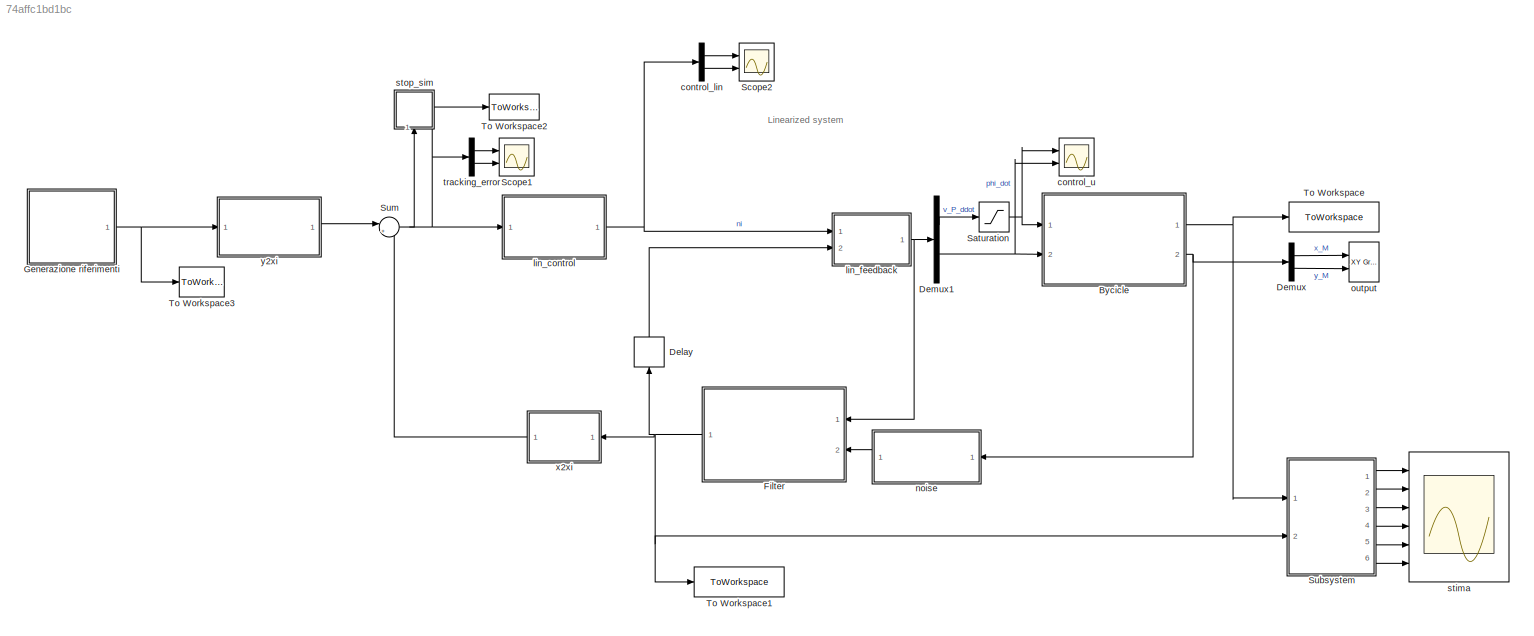
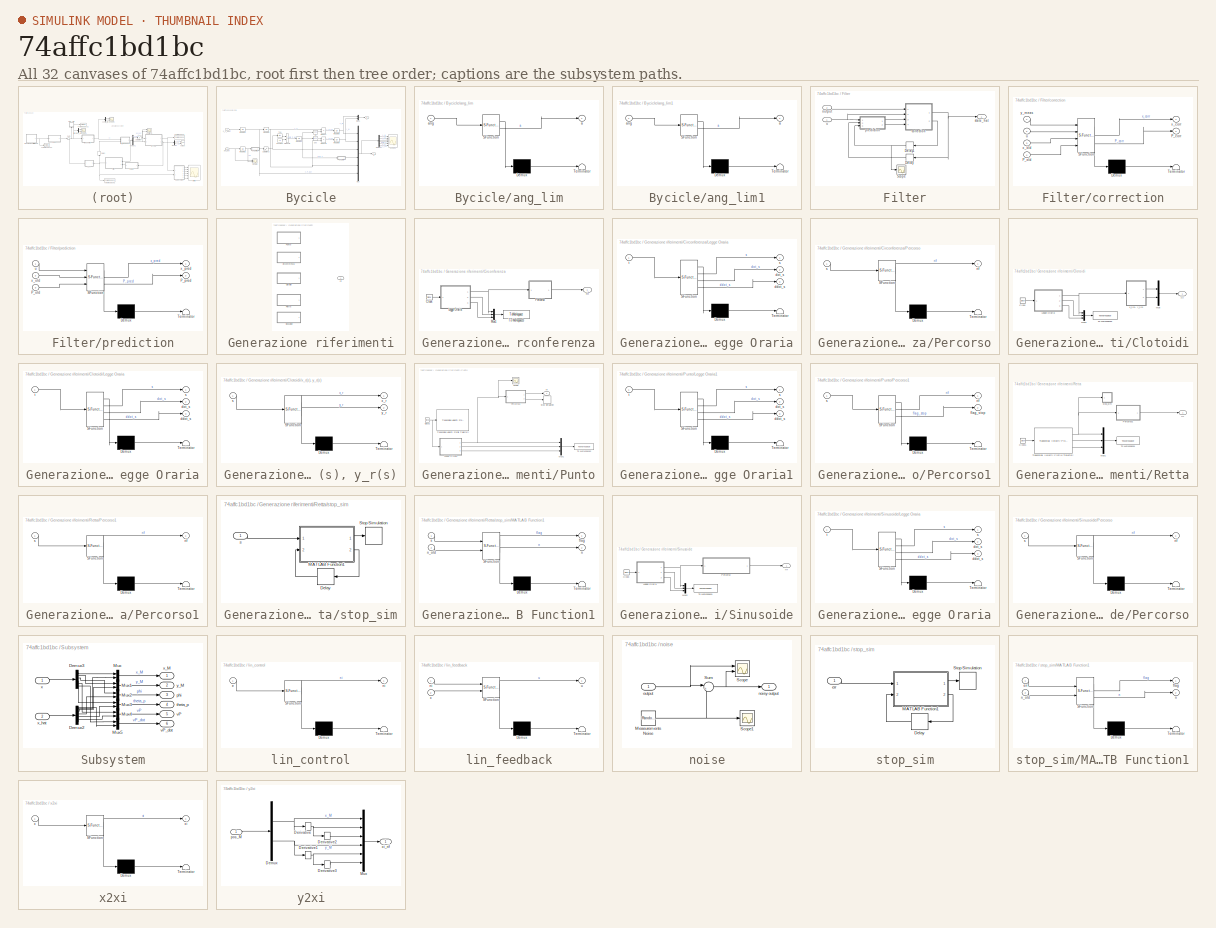
[diagram: thumbnail index - all 32 canvases of the model, root first then tree order]
MODEL slx_74affc1bd1bc
KIND model
CONFIG AbsTol = auto
CONFIG EnableMultiTasking = off
CONFIG FixedStep = Ts
CONFIG InitFcn = init_bycicle
CONFIG MaxStep = 0.01
CONFIG MinStep = auto
CONFIG RelTol = 1e-3
CONFIG SampleTimeConstraint = Unconstrained
CONFIG Solver = ode1
CONFIG SolverName = ode1
CONFIG StartTime = 0.0
CONFIG StopFcn = stop_bycicle
CONFIG StopTime = Inf
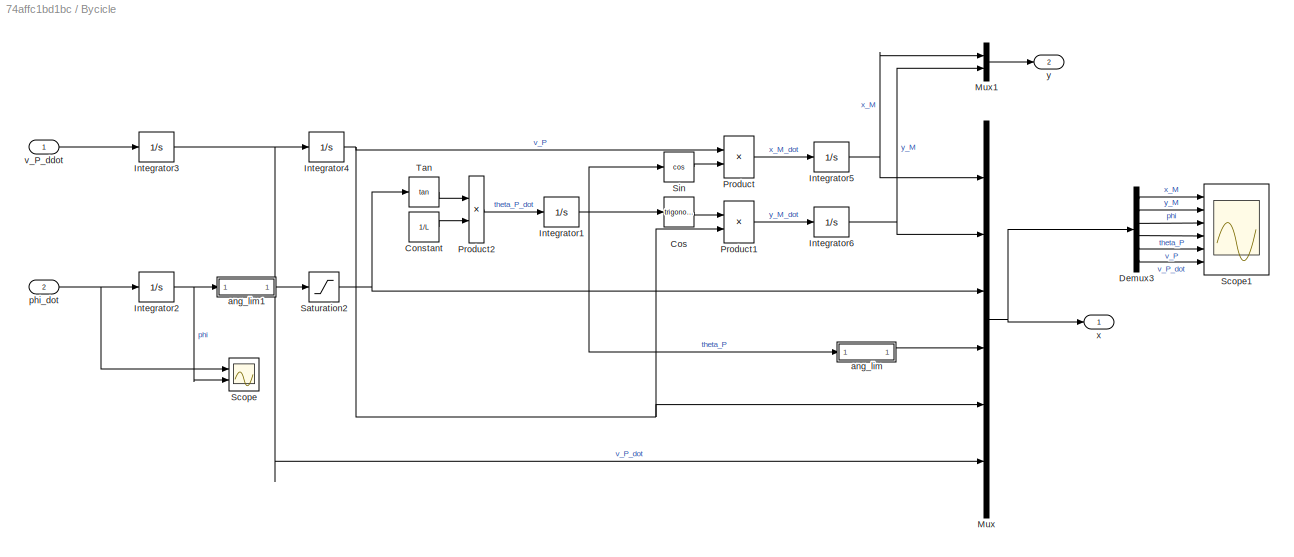
BLOCK [SubSystem] Bycicle
  Ports = [2, 2]
  RequestExecContextInheritance = off
BLOCK [Constant] Bycicle/Constant
  Value = 1/L
BLOCK [Trigonometry] Bycicle/Cos
  Ports = [1, 1]
BLOCK [Demux] Bycicle/Demux3
  Outputs = 6
  Ports = [1, 6]
BLOCK [Integrator] Bycicle/Integrator1
  InitialCondition = theta_P_iniziale
  NameLocation = top
  Ports = [1, 1]
BLOCK [Integrator] Bycicle/Integrator2
  InitialCondition = phi_iniziale
  LimitOutput = on
  LowerSaturationLimit = -pi/2
  NameLocation = top
  Ports = [1, 1]
  UpperSaturationLimit = pi/2
BLOCK [Integrator] Bycicle/Integrator3
  InitialCondition = v_P_dot_iniziale
  NameLocation = top
  Ports = [1, 1]
BLOCK [Integrator] Bycicle/Integrator4
  InitialCondition = v_P_iniziale
  NameLocation = top
  Ports = [1, 1]
BLOCK [Integrator] Bycicle/Integrator5
  InitialCondition = x_M_iniziale
  NameLocation = top
  Ports = [1, 1]
BLOCK [Integrator] Bycicle/Integrator6
  InitialCondition = y_M_iniziale
  NameLocation = top
  Ports = [1, 1]
BLOCK [Mux] Bycicle/Mux
  DisplayOption = bar
  Inputs = 6
  Ports = [6, 1]
BLOCK [Mux] Bycicle/Mux1
  DisplayOption = bar
  Inputs = 2
  Ports = [2, 1]
BLOCK [Product] Bycicle/Product
  Ports = [2, 1]
BLOCK [Product] Bycicle/Product1
  Ports = [2, 1]
BLOCK [Product] Bycicle/Product2
  Ports = [2, 1]
BLOCK [Saturate] Bycicle/Saturation2
  Commented = through
  LowerLimit = -pi/2*0.999
  UpperLimit = pi/2*0.999
BLOCK [Scope] Bycicle/Scope
  Floating = off
  NumInputPorts = 2
  Ports = [2]
  ScopeSpecificationString = Simulink.scopes.TimeScopeBlockCfg('CurrentConfiguration', extmgr.ConfigurationSet(extmgr.Configuration('Core','General UI',true),extmgr.Configuration('Core','Source UI',true),extmgr.Configuration('Sources','WiredSimulink',true,'DataLoggingVariableName','ScopeData1'),extmgr.Configuration('Visuals','Time Domain',true,'SerializedDisplays',{struct('MinYLimReal','-21546331958624542469165900490518237536...<+2174ch>
BLOCK [Scope] Bycicle/Scope1
  Floating = off
  NumInputPorts = 6
  Ports = [6]
  ScopeSpecificationString = Simulink.scopes.TimeScopeBlockCfg('CurrentConfiguration', extmgr.ConfigurationSet(extmgr.Configuration('Core','General UI',true),extmgr.Configuration('Core','Source UI',true),extmgr.Configuration('Sources','WiredSimulink',true,'DataLoggingVariableName','ScopeData1'),extmgr.Configuration('Visuals','Time Domain',true,'SerializedDisplays',{struct('MinYLimReal','-42907753996990078666280687650978377632...<+3170ch>
BLOCK [Trigonometry] Bycicle/Sin
  Operator = cos
  Ports = [1, 1]
BLOCK [Trigonometry] Bycicle/Tan
  Operator = tan
  Ports = [1, 1]
BLOCK [SubSystem] Bycicle/ang_lim
  ErrorFcn = Stateflow.Translate.translate
  NameLocation = top
  PermitHierarchicalResolution = ExplicitOnly
  Ports = [1, 1]
  RequestExecContextInheritance = off
  SFBlockType = MATLAB Function
  TreatAsAtomicUnit = on
BLOCK [Demux] Bycicle/ang_lim/ Demux 
  Outputs = 1
  Ports = [1, 1]
BLOCK [S-Function] Bycicle/ang_lim/ SFunction 
  EnableBusSupport = on
  FunctionName = sf_sfun
  PortCounts = [1 2]
  Ports = [1, 2]
  SFcnIsStateOwnerBlock = off
  SFunctionDeploymentMode = off
  Tag = Stateflow S-Function 4
BLOCK [Terminator] Bycicle/ang_lim/ Terminator 
BLOCK [Outport] Bycicle/ang_lim/a
BLOCK [Inport] Bycicle/ang_lim/ang
BLOCK [SubSystem] Bycicle/ang_lim1
  Commented = through
  ErrorFcn = Stateflow.Translate.translate
  NameLocation = top
  PermitHierarchicalResolution = ExplicitOnly
  Ports = [1, 1]
  RequestExecContextInheritance = off
  SFBlockType = MATLAB Function
  TreatAsAtomicUnit = on
BLOCK [Demux] Bycicle/ang_lim1/ Demux 
  Outputs = 1
  Ports = [1, 1]
BLOCK [S-Function] Bycicle/ang_lim1/ SFunction 
  EnableBusSupport = on
  FunctionName = sf_sfun
  PortCounts = [1 2]
  Ports = [1, 2]
  SFcnIsStateOwnerBlock = off
  SFunctionDeploymentMode = off
  Tag = Stateflow S-Function 8
BLOCK [Terminator] Bycicle/ang_lim1/ Terminator 
BLOCK [Outport] Bycicle/ang_lim1/a
BLOCK [Inport] Bycicle/ang_lim1/ang
BLOCK [Inport] Bycicle/phi_dot
  Port = 2
BLOCK [Inport] Bycicle/v_P_ddot
BLOCK [Outport] Bycicle/x
BLOCK [Outport] Bycicle/y
  Port = 2
BLOCK [Delay] Delay
  DelayLength = 1
  InitialCondition = x0
  InputPortMap = u0
  NameLocation = left
  Ports = [1, 1]
  SampleTime = Ts_filter
BLOCK [Demux] Demux
  Outputs = 2
  Ports = [1, 2]
BLOCK [Demux] Demux1
  Outputs = 2
  Ports = [1, 2]
BLOCK [SubSystem] Filter
  Ports = [2, 1]
  RequestExecContextInheritance = off
BLOCK [Delay] Filter/Delay
  DelayLength = 1
  InitialCondition = x0
  InputPortMap = u0
  NameLocation = top
  Ports = [1, 1]
  SampleTime = Ts_filter
BLOCK [Delay] Filter/Delay1
  DelayLength = 1
  InitialCondition = P0
  InputPortMap = u0
  NameLocation = top
  Ports = [1, 1]
  SampleTime = Ts_filter
BLOCK [Scope] Filter/Scope
  Floating = off
  NumInputPorts = 1
  Ports = [1]
  ScopeSpecificationString = Simulink.scopes.TimeScopeBlockCfg('CurrentConfiguration', extmgr.ConfigurationSet(extmgr.Configuration('Core','General UI',true),extmgr.Configuration('Core','Source UI',true),extmgr.Configuration('Sources','WiredSimulink',true,'DataLoggingVariableName','ScopeData2'),extmgr.Configuration('Visuals','Time Domain',true,'SerializedDisplays',{struct('MinYLimReal','-0.00000001','MaxYLimReal','0.00000013'...<+1900ch>
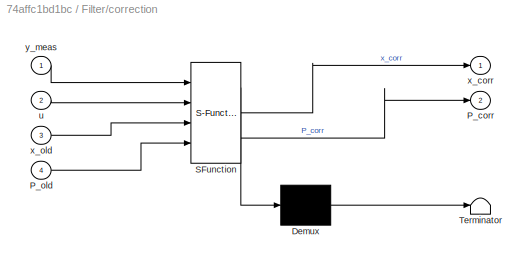
BLOCK [SubSystem] Filter/correction
  ErrorFcn = Stateflow.Translate.translate
  PermitHierarchicalResolution = ExplicitOnly
  Ports = [4, 2]
  RequestExecContextInheritance = off
  SFBlockType = MATLAB Function
  TreatAsAtomicUnit = on
BLOCK [Demux] Filter/correction/ Demux 
  Outputs = 1
  Ports = [1, 1]
BLOCK [S-Function] Filter/correction/ SFunction 
  EnableBusSupport = on
  FunctionName = sf_sfun
  Parameters = R
  PortCounts = [4 3]
  Ports = [4, 3]
  SFcnIsStateOwnerBlock = off
  SFunctionDeploymentMode = off
  Tag = Stateflow S-Function 12
BLOCK [Terminator] Filter/correction/ Terminator 
BLOCK [Outport] Filter/correction/P_corr
  Port = 2
BLOCK [Inport] Filter/correction/P_old
  Port = 4
BLOCK [Inport] Filter/correction/u
  Port = 2
BLOCK [Outport] Filter/correction/x_corr
BLOCK [Inport] Filter/correction/x_old
  Port = 3
BLOCK [Inport] Filter/correction/y_meas
BLOCK [Inport] Filter/output
  Port = 2
BLOCK [SubSystem] Filter/prediction
  ErrorFcn = Stateflow.Translate.translate
  PermitHierarchicalResolution = ExplicitOnly
  Ports = [3, 2]
  RequestExecContextInheritance = off
  SFBlockType = MATLAB Function
  TreatAsAtomicUnit = on
BLOCK [Demux] Filter/prediction/ Demux 
  Outputs = 1
  Ports = [1, 1]
BLOCK [S-Function] Filter/prediction/ SFunction 
  EnableBusSupport = on
  FunctionName = sf_sfun
  Parameters = L,Ts_filter
  PortCounts = [3 3]
  Ports = [3, 3]
  SFcnIsStateOwnerBlock = off
  SFunctionDeploymentMode = off
  Tag = Stateflow S-Function 11
BLOCK [Terminator] Filter/prediction/ Terminator 
BLOCK [Inport] Filter/prediction/P_old
  Port = 3
BLOCK [Outport] Filter/prediction/P_pred
  Port = 2
BLOCK [Inport] Filter/prediction/u
BLOCK [Inport] Filter/prediction/x_old
  Port = 2
BLOCK [Outport] Filter/prediction/x_pred
BLOCK [Outport] Filter/state_hat
BLOCK [Inport] Filter/u
BLOCK [SubSystem] Generazione riferimenti
  Ports = [0, 1]
  RequestExecContextInheritance = off
  Variant = on
BLOCK [SubSystem] Generazione riferimenti/Circonferenza
  Ports = [0, 1]
  RequestExecContextInheritance = off
  VariantControl = Circonferenza
BLOCK [Clock] Generazione riferimenti/Circonferenza/Clock
BLOCK [SubSystem] Generazione riferimenti/Circonferenza/Legge Oraria
  ErrorFcn = Stateflow.Translate.translate
  PermitHierarchicalResolution = ExplicitOnly
  Ports = [1, 3]
  RequestExecContextInheritance = off
  SFBlockType = MATLAB Function
  TreatAsAtomicUnit = on
BLOCK [Demux] Generazione riferimenti/Circonferenza/Legge Oraria/ Demux 
  Outputs = 1
  Ports = [1, 1]
BLOCK [S-Function] Generazione riferimenti/Circonferenza/Legge Oraria/ SFunction 
  EnableBusSupport = on
  FunctionName = sf_sfun
  Parameters = v_rif
  PortCounts = [1 4]
  Ports = [1, 4]
  SFcnIsStateOwnerBlock = off
  SFunctionDeploymentMode = off
  Tag = Stateflow S-Function 9
BLOCK [Terminator] Generazione riferimenti/Circonferenza/Legge Oraria/ Terminator 
BLOCK [Outport] Generazione riferimenti/Circonferenza/Legge Oraria/ddot_s
  Port = 3
BLOCK [Outport] Generazione riferimenti/Circonferenza/Legge Oraria/dot_s
  Port = 2
BLOCK [Outport] Generazione riferimenti/Circonferenza/Legge Oraria/s
BLOCK [Inport] Generazione riferimenti/Circonferenza/Legge Oraria/t
BLOCK [Mux] Generazione riferimenti/Circonferenza/Mux1
  DisplayOption = bar
  Inputs = 3
  Ports = [3, 1]
BLOCK [SubSystem] Generazione riferimenti/Circonferenza/Percorso
  ErrorFcn = Stateflow.Translate.translate
  PermitHierarchicalResolution = ExplicitOnly
  Ports = [1, 1]
  RequestExecContextInheritance = off
  SFBlockType = MATLAB Function
  TreatAsAtomicUnit = on
BLOCK [Demux] Generazione riferimenti/Circonferenza/Percorso/ Demux 
  Outputs = 1
  Ports = [1, 1]
BLOCK [S-Function] Generazione riferimenti/Circonferenza/Percorso/ SFunction 
  EnableBusSupport = on
  FunctionName = sf_sfun
  Parameters = centro,v_r
  PortCounts = [1 2]
  Ports = [1, 2]
  SFcnIsStateOwnerBlock = off
  SFunctionDeploymentMode = off
  Tag = Stateflow S-Function 10
BLOCK [Terminator] Generazione riferimenti/Circonferenza/Percorso/ Terminator 
BLOCK [Outport] Generazione riferimenti/Circonferenza/Percorso/rif
BLOCK [Inport] Generazione riferimenti/Circonferenza/Percorso/s
BLOCK [ToWorkspace] Generazione riferimenti/Circonferenza/To Workspace3
  FixptAsFi = on
  MaxDataPoints = inf
  Ports = [1]
  SampleTime = -1
  SaveFormat = Timeseries
  VariableName = curv_coord
BLOCK [Outport] Generazione riferimenti/Circonferenza/rif
BLOCK [SubSystem] Generazione riferimenti/Clotoidi
  Ports = [0, 1]
  RequestExecContextInheritance = off
  VariantControl = Clotoidi
BLOCK [Clock] Generazione riferimenti/Clotoidi/Clock
BLOCK [SubSystem] Generazione riferimenti/Clotoidi/Legge Oraria
  ErrorFcn = Stateflow.Translate.translate
  PermitHierarchicalResolution = ExplicitOnly
  Ports = [1, 3]
  RequestExecContextInheritance = off
  SFBlockType = MATLAB Function
  TreatAsAtomicUnit = on
BLOCK [Demux] Generazione riferimenti/Clotoidi/Legge Oraria/ Demux 
  Outputs = 1
  Ports = [1, 1]
BLOCK [S-Function] Generazione riferimenti/Clotoidi/Legge Oraria/ SFunction 
  EnableBusSupport = on
  FunctionName = sf_sfun
  Parameters = v_rif
  PortCounts = [1 4]
  Ports = [1, 4]
  SFcnIsStateOwnerBlock = off
  SFunctionDeploymentMode = off
  Tag = Stateflow S-Function 7
BLOCK [Terminator] Generazione riferimenti/Clotoidi/Legge Oraria/ Terminator 
BLOCK [Outport] Generazione riferimenti/Clotoidi/Legge Oraria/ddot_s
  Port = 3
BLOCK [Outport] Generazione riferimenti/Clotoidi/Legge Oraria/dot_s
  Port = 2
BLOCK [Outport] Generazione riferimenti/Clotoidi/Legge Oraria/s
BLOCK [Inport] Generazione riferimenti/Clotoidi/Legge Oraria/t
BLOCK [Mux] Generazione riferimenti/Clotoidi/Mux
  DisplayOption = bar
  Inputs = 2
  Ports = [2, 1]
BLOCK [Mux] Generazione riferimenti/Clotoidi/Mux1
  DisplayOption = bar
  Inputs = 3
  Ports = [3, 1]
BLOCK [ToWorkspace] Generazione riferimenti/Clotoidi/To Workspace3
  FixptAsFi = on
  MaxDataPoints = inf
  Ports = [1]
  SampleTime = -1
  SaveFormat = Timeseries
  VariableName = curv_coord
BLOCK [Outport] Generazione riferimenti/Clotoidi/rif
BLOCK [SubSystem] Generazione riferimenti/Clotoidi/x_r(s), y_r(s)
  ErrorFcn = Stateflow.Translate.translate
  PermitHierarchicalResolution = ExplicitOnly
  Ports = [1, 2]
  RequestExecContextInheritance = off
  SFBlockType = MATLAB Function
  TreatAsAtomicUnit = on
BLOCK [Demux] Generazione riferimenti/Clotoidi/x_r(s), y_r(s)/ Demux 
  Outputs = 1
  Ports = [1, 1]
BLOCK [S-Function] Generazione riferimenti/Clotoidi/x_r(s), y_r(s)/ SFunction 
  EnableBusSupport = on
  FunctionName = sf_sfun
  Parameters = Lsofar,Lsofarclot,Ltot,indexclot,n_p,theta_rette,xp,yp
  PortCounts = [1 3]
  Ports = [1, 3]
  SFcnIsStateOwnerBlock = off
  SFunctionDeploymentMode = off
  Tag = Stateflow S-Function 13
BLOCK [Terminator] Generazione riferimenti/Clotoidi/x_r(s), y_r(s)/ Terminator 
BLOCK [Inport] Generazione riferimenti/Clotoidi/x_r(s), y_r(s)/s
BLOCK [Outport] Generazione riferimenti/Clotoidi/x_r(s), y_r(s)/x_r
  VectorParamsAs1DForOutWhenUnconnected = off
BLOCK [Outport] Generazione riferimenti/Clotoidi/x_r(s), y_r(s)/y_r
  Port = 2
  VectorParamsAs1DForOutWhenUnconnected = off
BLOCK [SubSystem] Generazione riferimenti/Punto
  Ports = [0, 1]
  RequestExecContextInheritance = off
  VariantControl = Punto
BLOCK [Clock] Generazione riferimenti/Punto/Clock2
BLOCK [SubSystem] Generazione riferimenti/Punto/Legge Oraria1
  ErrorFcn = Stateflow.Translate.translate
  PermitHierarchicalResolution = ExplicitOnly
  Ports = [1, 3]
  RequestExecContextInheritance = off
  SFBlockType = MATLAB Function
  TreatAsAtomicUnit = on
BLOCK [Demux] Generazione riferimenti/Punto/Legge Oraria1/ Demux 
  Outputs = 1
  Ports = [1, 1]
BLOCK [S-Function] Generazione riferimenti/Punto/Legge Oraria1/ SFunction 
  EnableBusSupport = on
  FunctionName = sf_sfun
  Parameters = v_rif
  PortCounts = [1 4]
  Ports = [1, 4]
  SFcnIsStateOwnerBlock = off
  SFunctionDeploymentMode = off
  Tag = Stateflow S-Function 16
BLOCK [Terminator] Generazione riferimenti/Punto/Legge Oraria1/ Terminator 
BLOCK [Outport] Generazione riferimenti/Punto/Legge Oraria1/ddot_s
  Port = 3
BLOCK [Outport] Generazione riferimenti/Punto/Legge Oraria1/dot_s
  Port = 2
BLOCK [Outport] Generazione riferimenti/Punto/Legge Oraria1/s
BLOCK [Inport] Generazione riferimenti/Punto/Legge Oraria1/t
BLOCK [Mux] Generazione riferimenti/Punto/Mux1
  DisplayOption = bar
  Inputs = 3
  Ports = [3, 1]
BLOCK [SubSystem] Generazione riferimenti/Punto/Percorso1
  ErrorFcn = Stateflow.Translate.translate
  PermitHierarchicalResolution = ExplicitOnly
  Ports = [1, 2]
  RequestExecContextInheritance = off
  SFBlockType = MATLAB Function
  TreatAsAtomicUnit = on
BLOCK [Demux] Generazione riferimenti/Punto/Percorso1/ Demux 
  Outputs = 1
  Ports = [1, 1]
BLOCK [S-Function] Generazione riferimenti/Punto/Percorso1/ SFunction 
  EnableBusSupport = on
  FunctionName = sf_sfun
  Parameters = dir_retta,s_finale,x_M_iniziale,y_M_iniziale
  PortCounts = [1 3]
  Ports = [1, 3]
  SFcnIsStateOwnerBlock = off
  SFunctionDeploymentMode = off
  Tag = Stateflow S-Function 28
BLOCK [Terminator] Generazione riferimenti/Punto/Percorso1/ Terminator 
BLOCK [Outport] Generazione riferimenti/Punto/Percorso1/flag_stop
  Port = 2
BLOCK [Outport] Generazione riferimenti/Punto/Percorso1/rif
BLOCK [Inport] Generazione riferimenti/Punto/Percorso1/s
BLOCK [Scope] Generazione riferimenti/Punto/Scope
  Floating = off
  NumInputPorts = 1
  Ports = [1]
  ScopeSpecificationString = Simulink.scopes.TimeScopeBlockCfg('CurrentConfiguration', extmgr.ConfigurationSet(extmgr.Configuration('Core','General UI',true),extmgr.Configuration('Core','Source UI',true),extmgr.Configuration('Sources','WiredSimulink',true,'DataLoggingVariableName','ScopeData1'),extmgr.Configuration('Visuals','Time Domain',true,'SerializedDisplays',{struct('MinYLimReal','-8.54167','MaxYLimReal','76.875','YLabe...<+1544ch>
BLOCK [Stop] Generazione riferimenti/Punto/Stop Simulation
BLOCK [ToWorkspace] Generazione riferimenti/Punto/To Workspace2
  FixptAsFi = on
  MaxDataPoints = inf
  Ports = [1]
  SampleTime = -1
  SaveFormat = Timeseries
  VariableName = curv_coord
BLOCK [Reference] Generazione riferimenti/Punto/Trapezoidal Velocity Profile Trajectory  REF=robotcorelib/Trapezoidal Velocity Profile Trajectory
  Commented = on
  Ports = [1, 3]
  SourceBlock = robotcorelib/Trapezoidal Velocity Profile Trajectory
  SourceProductBaseCode = NV,RO,RR
  SourceType = robotics.slcore.internal.block.TrapVelTrajSys
BLOCK [Outport] Generazione riferimenti/Punto/rif
BLOCK [SubSystem] Generazione riferimenti/Retta
  Ports = [0, 1]
  RequestExecContextInheritance = off
  VariantControl = Retta
BLOCK [Clock] Generazione riferimenti/Retta/Clock1
BLOCK [Mux] Generazione riferimenti/Retta/Mux1
  DisplayOption = bar
  Inputs = 3
  Ports = [3, 1]
BLOCK [SubSystem] Generazione riferimenti/Retta/Percorso1
  ErrorFcn = Stateflow.Translate.translate
  PermitHierarchicalResolution = ExplicitOnly
  Ports = [1, 1]
  RequestExecContextInheritance = off
  SFBlockType = MATLAB Function
  TreatAsAtomicUnit = on
BLOCK [Demux] Generazione riferimenti/Retta/Percorso1/ Demux 
  Outputs = 1
  Ports = [1, 1]
BLOCK [S-Function] Generazione riferimenti/Retta/Percorso1/ SFunction 
  EnableBusSupport = on
  FunctionName = sf_sfun
  Parameters = dir_retta
  PortCounts = [1 2]
  Ports = [1, 2]
  SFcnIsStateOwnerBlock = off
  SFunctionDeploymentMode = off
  Tag = Stateflow S-Function 3
BLOCK [Terminator] Generazione riferimenti/Retta/Percorso1/ Terminator 
BLOCK [Outport] Generazione riferimenti/Retta/Percorso1/rif
BLOCK [Inport] Generazione riferimenti/Retta/Percorso1/s
BLOCK [ToWorkspace] Generazione riferimenti/Retta/To Workspace1
  FixptAsFi = on
  MaxDataPoints = inf
  Ports = [1]
  SampleTime = -1
  SaveFormat = Timeseries
  VariableName = curv_coord
BLOCK [Reference] Generazione riferimenti/Retta/Trapezoidal Velocity Profile Trajectory  REF=robotcorelib/Trapezoidal Velocity Profile Trajectory
  Ports = [1, 3]
  SourceBlock = robotcorelib/Trapezoidal Velocity Profile Trajectory
  SourceProductBaseCode = NV,RO,RR
  SourceType = robotics.slcore.internal.block.TrapVelTrajSys
BLOCK [Outport] Generazione riferimenti/Retta/rif
BLOCK [SubSystem] Generazione riferimenti/Retta/stop_sim
  Ports = [1]
  RequestExecContextInheritance = off
BLOCK [Delay] Generazione riferimenti/Retta/stop_sim/Delay
  DelayLength = 1
  InputPortMap = u0
  Ports = [1, 1]
BLOCK [SubSystem] Generazione riferimenti/Retta/stop_sim/MATLAB Function1
  ErrorFcn = Stateflow.Translate.translate
  PermitHierarchicalResolution = ExplicitOnly
  Ports = [2, 2]
  RequestExecContextInheritance = off
  SFBlockType = MATLAB Function
  TreatAsAtomicUnit = on
BLOCK [Demux] Generazione riferimenti/Retta/stop_sim/MATLAB Function1/ Demux 
  Outputs = 1
  Ports = [1, 1]
BLOCK [S-Function] Generazione riferimenti/Retta/stop_sim/MATLAB Function1/ SFunction 
  EnableBusSupport = on
  FunctionName = sf_sfun
  Parameters = s_finale,threshold
  PortCounts = [2 3]
  Ports = [2, 3]
  SFcnIsStateOwnerBlock = off
  SFunctionDeploymentMode = off
  Tag = Stateflow S-Function 6
BLOCK [Terminator] Generazione riferimenti/Retta/stop_sim/MATLAB Function1/ Terminator 
BLOCK [Outport] Generazione riferimenti/Retta/stop_sim/MATLAB Function1/flag
BLOCK [Outport] Generazione riferimenti/Retta/stop_sim/MATLAB Function1/n
  Port = 2
BLOCK [Inport] Generazione riferimenti/Retta/stop_sim/MATLAB Function1/n_old
  Port = 2
BLOCK [Inport] Generazione riferimenti/Retta/stop_sim/MATLAB Function1/s
BLOCK [Stop] Generazione riferimenti/Retta/stop_sim/Stop Simulation
BLOCK [Inport] Generazione riferimenti/Retta/stop_sim/s
BLOCK [SubSystem] Generazione riferimenti/Sinusoide
  Ports = [0, 1]
  RequestExecContextInheritance = off
  VariantControl = Sinusoide
BLOCK [Clock] Generazione riferimenti/Sinusoide/Clock
BLOCK [SubSystem] Generazione riferimenti/Sinusoide/Legge Oraria
  ErrorFcn = Stateflow.Translate.translate
  PermitHierarchicalResolution = ExplicitOnly
  Ports = [1, 3]
  RequestExecContextInheritance = off
  SFBlockType = MATLAB Function
  TreatAsAtomicUnit = on
BLOCK [Demux] Generazione riferimenti/Sinusoide/Legge Oraria/ Demux 
  Outputs = 1
  Ports = [1, 1]
BLOCK [S-Function] Generazione riferimenti/Sinusoide/Legge Oraria/ SFunction 
  EnableBusSupport = on
  FunctionName = sf_sfun
  Parameters = v_rif
  PortCounts = [1 4]
  Ports = [1, 4]
  SFcnIsStateOwnerBlock = off
  SFunctionDeploymentMode = off
  Tag = Stateflow S-Function 14
BLOCK [Terminator] Generazione riferimenti/Sinusoide/Legge Oraria/ Terminator 
BLOCK [Outport] Generazione riferimenti/Sinusoide/Legge Oraria/ddot_s
  Port = 3
BLOCK [Outport] Generazione riferimenti/Sinusoide/Legge Oraria/dot_s
  Port = 2
BLOCK [Outport] Generazione riferimenti/Sinusoide/Legge Oraria/s
BLOCK [Inport] Generazione riferimenti/Sinusoide/Legge Oraria/t
BLOCK [Mux] Generazione riferimenti/Sinusoide/Mux2
  DisplayOption = bar
  Inputs = 3
  Ports = [3, 1]
BLOCK [SubSystem] Generazione riferimenti/Sinusoide/Percorso
  ErrorFcn = Stateflow.Translate.translate
  PermitHierarchicalResolution = ExplicitOnly
  Ports = [1, 1]
  RequestExecContextInheritance = off
  SFBlockType = MATLAB Function
  TreatAsAtomicUnit = on
BLOCK [Demux] Generazione riferimenti/Sinusoide/Percorso/ Demux 
  Outputs = 1
  Ports = [1, 1]
BLOCK [S-Function] Generazione riferimenti/Sinusoide/Percorso/ SFunction 
  EnableBusSupport = on
  FunctionName = sf_sfun
  Parameters = apertura,dir_retta
  PortCounts = [1 2]
  Ports = [1, 2]
  SFcnIsStateOwnerBlock = off
  SFunctionDeploymentMode = off
  Tag = Stateflow S-Function 15
BLOCK [Terminator] Generazione riferimenti/Sinusoide/Percorso/ Terminator 
BLOCK [Outport] Generazione riferimenti/Sinusoide/Percorso/rif
BLOCK [Inport] Generazione riferimenti/Sinusoide/Percorso/s
BLOCK [ToWorkspace] Generazione riferimenti/Sinusoide/To Workspace1
  FixptAsFi = on
  MaxDataPoints = inf
  Ports = [1]
  SampleTime = -1
  SaveFormat = Timeseries
  VariableName = curv_coord
BLOCK [Outport] Generazione riferimenti/Sinusoide/rif
BLOCK [Outport] Generazione riferimenti/rif
BLOCK [Saturate] Saturation
  LowerLimit = -inf
  UpperLimit = inf
BLOCK [Scope] Scope1
  Floating = off
  NumInputPorts = 2
  Ports = [2]
  ScopeSpecificationString = Simulink.scopes.TimeScopeBlockCfg('CurrentConfiguration', extmgr.ConfigurationSet(extmgr.Configuration('Core','General UI',true),extmgr.Configuration('Core','Source UI',true),extmgr.Configuration('Sources','WiredSimulink',true,'DataLoggingVariableName','ScopeData1'),extmgr.Configuration('Visuals','Time Domain',true,'SerializedDisplays',{struct('MinYLimReal','-0.0998','MaxYLimReal','0.07439','YLabe...<+1552ch>
BLOCK [Scope] Scope2
  Floating = off
  NumInputPorts = 2
  Ports = [2]
  ScopeSpecificationString = Simulink.scopes.TimeScopeBlockCfg('CurrentConfiguration', extmgr.ConfigurationSet(extmgr.Configuration('Core','General UI',true),extmgr.Configuration('Core','Source UI',true),extmgr.Configuration('Sources','WiredSimulink',true,'DataLoggingVariableName','ScopeData3'),extmgr.Configuration('Visuals','Time Domain',true,'SerializedDisplays',{struct('MinYLimReal','-28128942865715496458282282631640135295...<+1896ch>
BLOCK [SubSystem] Subsystem
  Ports = [2, 6]
  RequestExecContextInheritance = off
BLOCK [Demux] Subsystem/Demux2
  Outputs = 6
  Ports = [1, 6]
BLOCK [Demux] Subsystem/Demux3
  Outputs = 6
  Ports = [1, 6]
BLOCK [Mux] Subsystem/Mux
  DisplayOption = bar
  Inputs = 2
  Ports = [2, 1]
BLOCK [Mux] Subsystem/Mux1
  DisplayOption = bar
  Inputs = 2
  Ports = [2, 1]
BLOCK [Mux] Subsystem/Mux2
  DisplayOption = bar
  Inputs = 2
  Ports = [2, 1]
BLOCK [Mux] Subsystem/Mux3
  DisplayOption = bar
  Inputs = 2
  Ports = [2, 1]
BLOCK [Mux] Subsystem/Mux4
  DisplayOption = bar
  Inputs = 2
  Ports = [2, 1]
BLOCK [Mux] Subsystem/Mux5
  DisplayOption = bar
  Inputs = 2
  Ports = [2, 1]
BLOCK [Outport] Subsystem/phi
  Port = 3
BLOCK [Outport] Subsystem/theta_p
  Port = 4
BLOCK [Outport] Subsystem/vP
  Port = 5
BLOCK [Outport] Subsystem/vP_dot
  Port = 6
BLOCK [Inport] Subsystem/x
BLOCK [Outport] Subsystem/x_M
BLOCK [Inport] Subsystem/x_hat
  Port = 2
BLOCK [Outport] Subsystem/y_M
  Port = 2
BLOCK [Sum] Sum
  Inputs = |+-
  Ports = [2, 1]
BLOCK [ToWorkspace] To Workspace
  FixptAsFi = on
  MaxDataPoints = inf
  Ports = [1]
  SampleTime = -1
  SaveFormat = Timeseries
  VariableName = state_ts
BLOCK [ToWorkspace] To Workspace1
  FixptAsFi = on
  MaxDataPoints = inf
  Ports = [1]
  SampleTime = -1
  SaveFormat = Timeseries
  VariableName = state_hat
BLOCK [ToWorkspace] To Workspace2
  FixptAsFi = on
  MaxDataPoints = inf
  Ports = [1]
  SampleTime = -1
  SaveFormat = Timeseries
  VariableName = err
BLOCK [ToWorkspace] To Workspace3
  FixptAsFi = on
  MaxDataPoints = inf
  Ports = [1]
  SampleTime = -1
  SaveFormat = Timeseries
  VariableName = rif
BLOCK [Demux] control_lin
  Outputs = 2
  Ports = [1, 2]
BLOCK [Scope] control_u
  Floating = off
  NumInputPorts = 2
  Ports = [2]
  ScopeSpecificationString = Simulink.scopes.TimeScopeBlockCfg('CurrentConfiguration', extmgr.ConfigurationSet(extmgr.Configuration('Core','General UI',true),extmgr.Configuration('Core','Source UI',true),extmgr.Configuration('Sources','WiredSimulink',true,'DataLoggingVariableName','ScopeData2'),extmgr.Configuration('Visuals','Time Domain',true,'SerializedDisplays',{struct('MinYLimReal','-367131.61365','MaxYLimReal','1271267.2...<+2157ch>
BLOCK [SubSystem] lin_control
  ErrorFcn = Stateflow.Translate.translate
  PermitHierarchicalResolution = ExplicitOnly
  Ports = [1, 1]
  RequestExecContextInheritance = off
  SFBlockType = MATLAB Function
  TreatAsAtomicUnit = on
BLOCK [Demux] lin_control/ Demux 
  Outputs = 1
  Ports = [1, 1]
BLOCK [S-Function] lin_control/ SFunction 
  EnableBusSupport = on
  FunctionName = sf_sfun
  Parameters = K1,K2,K3
  PortCounts = [1 2]
  Ports = [1, 2]
  SFcnIsStateOwnerBlock = off
  SFunctionDeploymentMode = off
  Tag = Stateflow S-Function 1
BLOCK [Terminator] lin_control/ Terminator 
BLOCK [Inport] lin_control/e
BLOCK [Outport] lin_control/ni
BLOCK [SubSystem] lin_feedback
  ErrorFcn = Stateflow.Translate.translate
  PermitHierarchicalResolution = ExplicitOnly
  Ports = [2, 1]
  RequestExecContextInheritance = off
  SFBlockType = MATLAB Function
  TreatAsAtomicUnit = on
BLOCK [Demux] lin_feedback/ Demux 
  Outputs = 1
  Ports = [1, 1]
BLOCK [S-Function] lin_feedback/ SFunction 
  EnableBusSupport = on
  FunctionName = sf_sfun
  Parameters = L
  PortCounts = [2 2]
  Ports = [2, 2]
  SFcnIsStateOwnerBlock = off
  SFunctionDeploymentMode = off
  Tag = Stateflow S-Function 2
BLOCK [Terminator] lin_feedback/ Terminator 
BLOCK [Inport] lin_feedback/ni
BLOCK [Outport] lin_feedback/u
BLOCK [Inport] lin_feedback/x
  Port = 2
BLOCK [SubSystem] noise
  Ports = [1, 1]
  RequestExecContextInheritance = off
BLOCK [RandomNumber] noise/Measurements Noise
  SampleTime = Ts_meas
  Seed = [10, 13]
  Variance = var_meas
BLOCK [Scope] noise/Scope
  Floating = off
  NumInputPorts = 2
  Ports = [2]
  ScopeSpecificationString = Simulink.scopes.TimeScopeBlockCfg('CurrentConfiguration', extmgr.ConfigurationSet(extmgr.Configuration('Core','General UI',true),extmgr.Configuration('Core','Source UI',true),extmgr.Configuration('Sources','WiredSimulink',true,'DataLoggingVariableName','ScopeData2'),extmgr.Configuration('Visuals','Time Domain',true,'SerializedDisplays',{struct('MinYLimReal','22.28249','MaxYLimReal','22.29297','YLa...<+2077ch>
BLOCK [Scope] noise/Scope1
  Floating = off
  NumInputPorts = 1
  Ports = [1]
  ScopeSpecificationString = Simulink.scopes.TimeScopeBlockCfg('CurrentConfiguration', extmgr.ConfigurationSet(extmgr.Configuration('Core','General UI',true),extmgr.Configuration('Core','Source UI',true),extmgr.Configuration('Sources','WiredSimulink',true,'DataLoggingVariableName','ScopeData3'),extmgr.Configuration('Visuals','Time Domain',true,'SerializedDisplays',{struct('MinYLimReal','-0.00175','MaxYLimReal','0.00181','YLab...<+1446ch>
BLOCK [Sum] noise/Sum
  Inputs = |++
  Ports = [2, 1]
BLOCK [Outport] noise/noisy output
BLOCK [Inport] noise/output
BLOCK [Reference] output  REF=simulink/Sinks/XY Graph
  Ports = [2]
  SourceBlock = simulink/Sinks/XY Graph
  SourceProductBaseCode = SL
  SourceType = XY scope.
BLOCK [Scope] stima
  Floating = off
  NumInputPorts = 6
  Ports = [6]
  ScopeSpecificationString = Simulink.scopes.TimeScopeBlockCfg('CurrentConfiguration', extmgr.ConfigurationSet(extmgr.Configuration('Core','General UI',true),extmgr.Configuration('Core','Source UI',true),extmgr.Configuration('Sources','WiredSimulink',true,'DataLoggingVariableName','ScopeData1'),extmgr.Configuration('Visuals','Time Domain',true,'SerializedDisplays',{struct('MinYLimReal','-20.80304','MaxYLimReal','71.78957','YL...<+5132ch>
BLOCK [SubSystem] stop_sim
  Commented = on
  NameLocation = top
  Ports = [1]
  RequestExecContextInheritance = off
BLOCK [Delay] stop_sim/Delay
  DelayLength = 1
  InputPortMap = u0
  Ports = [1, 1]
BLOCK [SubSystem] stop_sim/MATLAB Function1
  ErrorFcn = Stateflow.Translate.translate
  PermitHierarchicalResolution = ExplicitOnly
  Ports = [2, 2]
  RequestExecContextInheritance = off
  SFBlockType = MATLAB Function
  TreatAsAtomicUnit = on
BLOCK [Demux] stop_sim/MATLAB Function1/ Demux 
  Outputs = 1
  Ports = [1, 1]
BLOCK [S-Function] stop_sim/MATLAB Function1/ SFunction 
  EnableBusSupport = on
  FunctionName = sf_sfun
  Parameters = threshold
  PortCounts = [2 3]
  Ports = [2, 3]
  SFcnIsStateOwnerBlock = off
  SFunctionDeploymentMode = off
  Tag = Stateflow S-Function 5
BLOCK [Terminator] stop_sim/MATLAB Function1/ Terminator 
BLOCK [Inport] stop_sim/MATLAB Function1/err
BLOCK [Outport] stop_sim/MATLAB Function1/flag
BLOCK [Outport] stop_sim/MATLAB Function1/n
  Port = 2
BLOCK [Inport] stop_sim/MATLAB Function1/n_old
  Port = 2
BLOCK [Stop] stop_sim/Stop Simulation
BLOCK [Inport] stop_sim/err
BLOCK [Demux] tracking_error
  Outputs = 2
  Ports = [1, 2]
BLOCK [SubSystem] x2xi
  ErrorFcn = Stateflow.Translate.translate
  PermitHierarchicalResolution = ExplicitOnly
  Ports = [1, 1]
  RequestExecContextInheritance = off
  SFBlockType = MATLAB Function
  TreatAsAtomicUnit = on
BLOCK [Demux] x2xi/ Demux 
  Outputs = 1
  Ports = [1, 1]
BLOCK [S-Function] x2xi/ SFunction 
  EnableBusSupport = on
  FunctionName = sf_sfun
  Parameters = L
  PortCounts = [1 2]
  Ports = [1, 2]
  SFcnIsStateOwnerBlock = off
  SFunctionDeploymentMode = off
  Tag = Stateflow S-Function 26
BLOCK [Terminator] x2xi/ Terminator 
BLOCK [Inport] x2xi/x
BLOCK [Outport] x2xi/xi
BLOCK [SubSystem] y2xi
  Ports = [1, 1]
  RequestExecContextInheritance = off
BLOCK [Demux] y2xi/Demux
  Outputs = 2
  Ports = [1, 2]
BLOCK [Derivative] y2xi/Derivative
  CoefficientInTFapproximation = 1e10
BLOCK [Derivative] y2xi/Derivative1
  CoefficientInTFapproximation = 1e10
BLOCK [Derivative] y2xi/Derivative2
  CoefficientInTFapproximation = 1e10
BLOCK [Derivative] y2xi/Derivative3
  CoefficientInTFapproximation = 1e10
BLOCK [Mux] y2xi/Mux
  DisplayOption = bar
  Inputs = 6
  Ports = [6, 1]
BLOCK [Inport] y2xi/pos_M
BLOCK [Outport] y2xi/xi_rif
ANNOTATION (root): Linearized system
LINE Bycicle/Constant:1 -> Bycicle/Product2:2
LINE Bycicle/Cos:1 -> Bycicle/Product1:1
LINE Bycicle/Demux3:1 -> Bycicle/Scope1:1
LINE Bycicle/Demux3:2 -> Bycicle/Scope1:2
LINE Bycicle/Demux3:3 -> Bycicle/Scope1:3
LINE Bycicle/Demux3:4 -> Bycicle/Scope1:4
LINE Bycicle/Demux3:5 -> Bycicle/Scope1:5
LINE Bycicle/Demux3:6 -> Bycicle/Scope1:6
NET Bycicle/Integrator1:1 -> Bycicle/Cos:1, Bycicle/Sin:1, Bycicle/ang_lim:1
NET Bycicle/Integrator2:1 -> Bycicle/Scope:2, Bycicle/ang_lim1:1
NET Bycicle/Integrator3:1 -> Bycicle/Integrator4:1, Bycicle/Mux:6
NET Bycicle/Integrator4:1 -> Bycicle/Mux:5, Bycicle/Product1:2, Bycicle/Product:1
NET Bycicle/Integrator5:1 -> Bycicle/Mux1:1, Bycicle/Mux:1
NET Bycicle/Integrator6:1 -> Bycicle/Mux1:2, Bycicle/Mux:2
LINE Bycicle/Mux1:1 -> Bycicle/y:1
NET Bycicle/Mux:1 -> Bycicle/Demux3:1, Bycicle/x:1
LINE Bycicle/Product1:1 -> Bycicle/Integrator6:1
LINE Bycicle/Product2:1 -> Bycicle/Integrator1:1
LINE Bycicle/Product:1 -> Bycicle/Integrator5:1
NET Bycicle/Saturation2:1 -> Bycicle/Mux:3, Bycicle/Tan:1
LINE Bycicle/Sin:1 -> Bycicle/Product:2
LINE Bycicle/Tan:1 -> Bycicle/Product2:1
LINE Bycicle/ang_lim1:1 -> Bycicle/Saturation2:1
LINE Bycicle/ang_lim:1 -> Bycicle/Mux:4
NET Bycicle/phi_dot:1 -> Bycicle/Integrator2:1, Bycicle/Scope:1
LINE Bycicle/v_P_ddot:1 -> Bycicle/Integrator3:1
NET Bycicle:1 -> Subsystem:1, To Workspace:1
NET Bycicle:2 -> Demux:1, noise:1
LINE Delay:1 -> lin_feedback:2
LINE Demux1:1 -> Saturation:1
NET Demux1:2 -> Bycicle:2, control_u:2
LINE Demux:1 -> output:1
LINE Demux:2 -> output:2
NET Filter/Delay1:1 -> Filter/Scope:1, Filter/prediction:3
LINE Filter/Delay:1 -> Filter/prediction:2
NET Filter/correction:1 -> Filter/Delay:1, Filter/state_hat:1
LINE Filter/correction:2 -> Filter/Delay1:1
LINE Filter/output:1 -> Filter/correction:1
LINE Filter/prediction:1 -> Filter/correction:3
LINE Filter/prediction:2 -> Filter/correction:4
NET Filter/u:1 -> Filter/correction:2, Filter/prediction:1
NET Filter:1 -> Delay:1, Subsystem:2, To Workspace1:1, x2xi:1
LINE Generazione riferimenti/Circonferenza/Clock:1 -> Generazione riferimenti/Circonferenza/Legge Oraria:1
NET Generazione riferimenti/Circonferenza/Legge Oraria:1 -> Generazione riferimenti/Circonferenza/Mux1:1, Generazione riferimenti/Circonferenza/Percorso:1
LINE Generazione riferimenti/Circonferenza/Legge Oraria:2 -> Generazione riferimenti/Circonferenza/Mux1:2
LINE Generazione riferimenti/Circonferenza/Legge Oraria:3 -> Generazione riferimenti/Circonferenza/Mux1:3
LINE Generazione riferimenti/Circonferenza/Mux1:1 -> Generazione riferimenti/Circonferenza/To Workspace3:1
LINE Generazione riferimenti/Circonferenza/Percorso:1 -> Generazione riferimenti/Circonferenza/rif:1
LINE Generazione riferimenti/Clotoidi/Clock:1 -> Generazione riferimenti/Clotoidi/Legge Oraria:1
NET Generazione riferimenti/Clotoidi/Legge Oraria:1 -> Generazione riferimenti/Clotoidi/Mux1:1, Generazione riferimenti/Clotoidi/x_r(s), y_r(s):1
LINE Generazione riferimenti/Clotoidi/Legge Oraria:2 -> Generazione riferimenti/Clotoidi/Mux1:2
LINE Generazione riferimenti/Clotoidi/Legge Oraria:3 -> Generazione riferimenti/Clotoidi/Mux1:3
LINE Generazione riferimenti/Clotoidi/Mux1:1 -> Generazione riferimenti/Clotoidi/To Workspace3:1
LINE Generazione riferimenti/Clotoidi/Mux:1 -> Generazione riferimenti/Clotoidi/rif:1
LINE Generazione riferimenti/Clotoidi/x_r(s), y_r(s):1 -> Generazione riferimenti/Clotoidi/Mux:1
LINE Generazione riferimenti/Clotoidi/x_r(s), y_r(s):2 -> Generazione riferimenti/Clotoidi/Mux:2
NET Generazione riferimenti/Punto/Clock2:1 -> Generazione riferimenti/Punto/Legge Oraria1:1, Generazione riferimenti/Punto/Trapezoidal Velocity Profile Trajectory:1
NET Generazione riferimenti/Punto/Legge Oraria1:1 -> Generazione riferimenti/Punto/Mux1:1, Generazione riferimenti/Punto/Percorso1:1, Generazione riferimenti/Punto/Scope:1
LINE Generazione riferimenti/Punto/Legge Oraria1:2 -> Generazione riferimenti/Punto/Mux1:2
LINE Generazione riferimenti/Punto/Legge Oraria1:3 -> Generazione riferimenti/Punto/Mux1:3
LINE Generazione riferimenti/Punto/Mux1:1 -> Generazione riferimenti/Punto/To Workspace2:1
LINE Generazione riferimenti/Punto/Percorso1:1 -> Generazione riferimenti/Punto/rif:1
LINE Generazione riferimenti/Punto/Percorso1:2 -> Generazione riferimenti/Punto/Stop Simulation:1
LINE Generazione riferimenti/Retta/Clock1:1 -> Generazione riferimenti/Retta/Trapezoidal Velocity Profile Trajectory:1
LINE Generazione riferimenti/Retta/Mux1:1 -> Generazione riferimenti/Retta/To Workspace1:1
LINE Generazione riferimenti/Retta/Percorso1:1 -> Generazione riferimenti/Retta/rif:1
NET Generazione riferimenti/Retta/Trapezoidal Velocity Profile Trajectory:1 -> Generazione riferimenti/Retta/Mux1:1, Generazione riferimenti/Retta/Percorso1:1, Generazione riferimenti/Retta/stop_sim:1
LINE Generazione riferimenti/Retta/Trapezoidal Velocity Profile Trajectory:2 -> Generazione riferimenti/Retta/Mux1:2
LINE Generazione riferimenti/Retta/Trapezoidal Velocity Profile Trajectory:3 -> Generazione riferimenti/Retta/Mux1:3
LINE Generazione riferimenti/Retta/stop_sim/Delay:1 -> Generazione riferimenti/Retta/stop_sim/MATLAB Function1:2
LINE Generazione riferimenti/Retta/stop_sim/MATLAB Function1:1 -> Generazione riferimenti/Retta/stop_sim/Stop Simulation:1
LINE Generazione riferimenti/Retta/stop_sim/MATLAB Function1:2 -> Generazione riferimenti/Retta/stop_sim/Delay:1
LINE Generazione riferimenti/Retta/stop_sim/s:1 -> Generazione riferimenti/Retta/stop_sim/MATLAB Function1:1
LINE Generazione riferimenti/Sinusoide/Clock:1 -> Generazione riferimenti/Sinusoide/Legge Oraria:1
NET Generazione riferimenti/Sinusoide/Legge Oraria:1 -> Generazione riferimenti/Sinusoide/Mux2:1, Generazione riferimenti/Sinusoide/Percorso:1
LINE Generazione riferimenti/Sinusoide/Legge Oraria:2 -> Generazione riferimenti/Sinusoide/Mux2:2
LINE Generazione riferimenti/Sinusoide/Legge Oraria:3 -> Generazione riferimenti/Sinusoide/Mux2:3
LINE Generazione riferimenti/Sinusoide/Mux2:1 -> Generazione riferimenti/Sinusoide/To Workspace1:1
LINE Generazione riferimenti/Sinusoide/Percorso:1 -> Generazione riferimenti/Sinusoide/rif:1
NET Generazione riferimenti:1 -> To Workspace3:1, y2xi:1
NET Saturation:1 -> Bycicle:1, control_u:1
LINE Subsystem/Demux2:1 -> Subsystem/Mux:2
LINE Subsystem/Demux2:2 -> Subsystem/Mux1:2
LINE Subsystem/Demux2:3 -> Subsystem/Mux2:2
LINE Subsystem/Demux2:4 -> Subsystem/Mux3:2
LINE Subsystem/Demux2:5 -> Subsystem/Mux4:2
LINE Subsystem/Demux2:6 -> Subsystem/Mux5:2
LINE Subsystem/Demux3:1 -> Subsystem/Mux:1
LINE Subsystem/Demux3:2 -> Subsystem/Mux1:1
LINE Subsystem/Demux3:3 -> Subsystem/Mux2:1
LINE Subsystem/Demux3:4 -> Subsystem/Mux3:1
LINE Subsystem/Demux3:5 -> Subsystem/Mux4:1
LINE Subsystem/Demux3:6 -> Subsystem/Mux5:1
LINE Subsystem/Mux1:1 -> Subsystem/y_M:1
LINE Subsystem/Mux2:1 -> Subsystem/phi:1
LINE Subsystem/Mux3:1 -> Subsystem/theta_p:1
LINE Subsystem/Mux4:1 -> Subsystem/vP:1
LINE Subsystem/Mux5:1 -> Subsystem/vP_dot:1
LINE Subsystem/Mux:1 -> Subsystem/x_M:1
LINE Subsystem/x:1 -> Subsystem/Demux3:1
LINE Subsystem/x_hat:1 -> Subsystem/Demux2:1
LINE Subsystem:1 -> stima:1
LINE Subsystem:2 -> stima:2
LINE Subsystem:3 -> stima:3
LINE Subsystem:4 -> stima:4
LINE Subsystem:5 -> stima:5
LINE Subsystem:6 -> stima:6
NET Sum:1 -> To Workspace2:1, lin_control:1, stop_sim:1, tracking_error:1
LINE control_lin:1 -> Scope2:1
LINE control_lin:2 -> Scope2:2
NET lin_control:1 -> control_lin:1, lin_feedback:1
NET lin_feedback:1 -> Demux1:1, Filter:1
NET noise/Measurements Noise:1 -> noise/Scope1:1, noise/Sum:2
NET noise/Sum:1 -> noise/Scope:2, noise/noisy output:1
NET noise/output:1 -> noise/Scope:1, noise/Sum:1
LINE noise:1 -> Filter:2
LINE stop_sim/Delay:1 -> stop_sim/MATLAB Function1:2
LINE stop_sim/MATLAB Function1:1 -> stop_sim/Stop Simulation:1
LINE stop_sim/MATLAB Function1:2 -> stop_sim/Delay:1
LINE stop_sim/err:1 -> stop_sim/MATLAB Function1:1
LINE tracking_error:1 -> Scope1:1
LINE tracking_error:2 -> Scope1:2
LINE x2xi:1 -> Sum:2
NET y2xi/Demux:1 -> y2xi/Derivative:1, y2xi/Mux:1
NET y2xi/Demux:2 -> y2xi/Derivative1:1, y2xi/Mux:4
NET y2xi/Derivative1:1 -> y2xi/Derivative3:1, y2xi/Mux:5
LINE y2xi/Derivative2:1 -> y2xi/Mux:3
LINE y2xi/Derivative3:1 -> y2xi/Mux:6
NET y2xi/Derivative:1 -> y2xi/Derivative2:1, y2xi/Mux:2
LINE y2xi/Mux:1 -> y2xi/xi_rif:1
LINE y2xi/pos_M:1 -> y2xi/Demux:1
LINE y2xi:1 -> Sum:1
note: NET lines group one-source signal fan-out (src -> all destinations, sorted); 1:1 wires keep LINE
CHART Bycicle/ang_lim1 states=1 transitions=1
  STATE_LABEL 'eML_blk_kernel()'
  STATE_LABEL 'SCRIPT:\nfunction a = ang_lim(ang)\n\n\tc = cos(ang);\n\ts = sin(ang);\n\ta = atan2(s, c);\n\nend\n\n'
CHART Generazione riferimenti/Circonferenza/Legge Oraria states=1 transitions=1
  STATE_LABEL 'eML_blk_kernel()'
  STATE_LABEL 'SCRIPT:\nfunction [s, dot_s, ddot_s]  = legge_oraria(t, v_rif)\n%#codegen PEPO\n\ns = v_rif*t;\ndot_s = v_rif;\nddot_s = 0.0;\n\n\nend'
CHART Generazione riferimenti/Circonferenza/Percorso states=1 transitions=1
  STATE_LABEL 'eML_blk_kernel()'
  STATE_LABEL 'SCRIPT:\nfunction rif = percorso(s, centro, v_r)\n\nr = 10*v_r;  % 1\ntheta_circ = s/r;\n\nif theta_circ >=  3*2*pi % dopotre giri ti fermi\n\ttheta_circ = 3*2*pi;\nend\n\nrif = centro + r*[cos(theta_circ);sin(theta_circ)];\t\t% circonferenza\n\nend\n'
CHART Filter/prediction states=1 transitions=1
  STATE_LABEL 'eML_blk_kernel()'
  STATE_LABEL 'SCRIPT:\nfunction [x_pred, P_pred] = pred(u, x_old, P_old, L, Ts_filter)\n\n[x_pred, P_pred] = ukf_predict(x_old, P_old, u, L, Ts_filter);\n\nend\n\n%%%%%%%%%%%%%%%%%%%%%%%%%\n\nfunction [x_new, P_new] = ukf_predict(x_old, P_old, u, L, Ts_filter)\n % ukf_predict generates 2n+1 sigma points, it propagates them using\n % state_update and outputs the mean and the covariance of the new sigma \n % points distribut...<+3608ch>'
CHART Filter/correction states=1 transitions=1
  STATE_LABEL 'eML_blk_kernel()'
  STATE_LABEL "SCRIPT:\nfunction [x_corr, P_corr] = corr(y_meas, u, x_old, P_old, R)\n\n[y_virt, S_virt, C] = ukf_virtmeas(x_old, P_old, u);\n\ne = y_meas - y_virt;\nS = S_virt + R;\n\n[x_corr, P_corr]= ukf_correct(x_old, P_old, e, S, C);\n\nend\n\n%%%%%%%%%%%%%%%%%%%%%%%%%\nfunction [x_new, P_new]= ukf_correct(x_old, P_old, e, S, C)\n\t% filter correction, using Kalman theory\n\t\n\tK = C*(inv(S)); \n    P_delta = - K*S*K';\n\t\n    ...<+3608ch>"
CHART Generazione riferimenti/Clotoidi/x_r(s), y_r(s) states=1 transitions=1
  STATE_LABEL 'eML_blk_kernel()'
  STATE_LABEL "SCRIPT:\nfunction [x_r,y_r] = percorso(s, indexclot, theta_rette, yp, xp, ...\n\t\t\t\t\t\t\t\t\t\tLsofar, n_p, Lsofarclot, Ltot)\n\t\t\t\t\t\t\t\t\t\ncoder.extrinsic('pointsOnClothoid')\n% fine percorso\nif s >= Ltot\n\ts = Ltot; % cosi` da plottare l'ultimo punto\nend\n\nntratto=0;\n\tXYS = [0; 0]; %definito prima\n\n\t%Parte per capire in che tratto sono\n\tif s < Lsofar(1)\n\t\tntratto=1;\n\telse\n\t\tfor ii=2:(n_p-1)\n\t\t\tif s>=Lsofar(ii-...<+1216ch>"
CHART Generazione riferimenti/Sinusoide/Legge Oraria states=1 transitions=1
  STATE_LABEL 'eML_blk_kernel()'
  STATE_LABEL 'SCRIPT:\nfunction [s, dot_s, ddot_s]  = legge_oraria(t, v_rif)\n%#codegen PEPO\n\ns = v_rif*t;\ndot_s = v_rif;\nddot_s = 0.0;\n\n\nend'
CHART Generazione riferimenti/Sinusoide/Percorso states=1 transitions=1
  STATE_LABEL 'eML_blk_kernel()'
  STATE_LABEL 'SCRIPT:\nfunction rif  = retta(s, dir_retta, apertura)\n\nr = 5;\ntheta_circ = s/r/apertura;\n\n% if theta_circ >=  3*2*pi % dopotre giri ti fermi\n% \ttheta_circ = 3*2*pi;\n% end\n\nrif = dir_retta * s + r*[0; sin(theta_circ)];\t% circonferenza\n\nend'
CHART Generazione riferimenti/Punto/Legge Oraria1 states=1 transitions=1
  STATE_LABEL 'eML_blk_kernel()'
  STATE_LABEL 'SCRIPT:\nfunction [s, dot_s, ddot_s]  = legge_oraria(t, v_rif)\n%#codegen PEPO\n\ns = v_rif*t;\ndot_s = v_rif;\nddot_s = 0.0;\n\n\nend'
CHART x2xi states=1 transitions=1
  STATE_LABEL 'eML_blk_kernel()'
  STATE_LABEL 'SCRIPT:\nfunction xi = x2xi(x, L)\n\nx_M\t\t= x(1);\ny_M\t\t= x(2);\nphi\t\t= x(3);\ntheta_P = x(4);\nv_P\t\t= x(5);\nv_P_dot = x(6);\n\n\nxi = [\t\t\t\t\t\t\t\t\t\t\t\tx_M;...\n                                       v_P*cos(theta_P);...\n v_P_dot*cos(theta_P) - (v_P^2*tan(phi)*sin(theta_P))/L;...\n                                                    y_M;...\n                                       v_P*sin(theta_P);...\n (cos(theta_P)...<+52ch>'
CHART Generazione riferimenti/Punto/Percorso1 states=1 transitions=1
  STATE_LABEL 'eML_blk_kernel()'
  STATE_LABEL 'SCRIPT:\nfunction [rif, flag_stop] = retta(s, dir_retta, x_M_iniziale, y_M_iniziale, s_finale)\n\nif s >= s_finale\n\ts = s_finale;\n\tflag_stop = 1;\nelse\n\tflag_stop = 0;\nend\n\nrif = [x_M_iniziale; y_M_iniziale] + s * dir_retta;\n\n\n\n\nend'
CHART lin_control states=1 transitions=1
  STATE_LABEL 'eML_blk_kernel()'
  STATE_LABEL 'SCRIPT:\nfunction ni = lin_control(e, K1, K2, K3)\n\n\n% edot = e_dot(1:6,1);\n% eddot = e_dot(7:12,1);\n% ni = K1*e + K2*edot + K3*eddot;\n\nni = K1*e;\n\nend\n'
CHART lin_feedback states=1 transitions=1
  STATE_LABEL 'eML_blk_kernel()'
  STATE_LABEL 'SCRIPT:\nfunction u = Linearized(ni, x,L)\nE_inv\t= inv_E(x,L);\nG\t\t= Gamma(x,L);\nu\t\t=  -E_inv*G + E_inv*ni;\nend\n\n% gamma\nfunction Gm = Gamma(x,L)\nphi = x(3);\ntheta_P = x(4);\nv_P = x(5);\nv_P_dot = x(6);\n\nGm =  [- (v_P*tan(phi)*((cos(theta_P)*tan(phi)*v_P^2)/L + v_P_dot*sin(theta_P)))/L - (2*v_P*v_P_dot*tan(phi)*sin(theta_P))/L;...\n\t\t (v_P*tan(phi)*(v_P_dot*cos(theta_P) - (v_P^2*tan(phi)*sin(theta_P))/...<+312ch>'
CHART Generazione riferimenti/Retta/Percorso1 states=1 transitions=1
  STATE_LABEL 'eML_blk_kernel()'
  STATE_LABEL 'SCRIPT:\nfunction rif  = retta(s, dir_retta)\n\nrif = s * dir_retta;\n\nend'
CHART Bycicle/ang_lim states=1 transitions=1
  STATE_LABEL 'eML_blk_kernel()'
  STATE_LABEL 'SCRIPT:\nfunction a = ang_lim(ang)\n\n\tc = cos(ang);\n\ts = sin(ang);\n\ta = atan2(s, c);\n\nend\n\n'
CHART stop_sim/MATLAB Function1 states=1 transitions=1
  STATE_LABEL 'eML_blk_kernel()'
  STATE_LABEL 'SCRIPT:\nfunction [flag, n] = stop_function(err, n_old, threshold)\n\tflag = 0;\n\tn = n_old;\n\tif norm(err, 2) < threshold\n\t\tn=n+1;\n\telse\n\t\tn=0;\n\tend\n\t\n\tif n > 500\n\t\tflag = 1;\n\t\tn = 0;\n\tend\nend\n'
CHART Generazione riferimenti/Retta/stop_sim/MATLAB Function1 states=1 transitions=1
  STATE_LABEL 'eML_blk_kernel()'
  STATE_LABEL 'SCRIPT:\nfunction [flag, n] = stop_function(s, n_old, threshold, s_finale)\n\tflag = 0;\n\tn = n_old;\n\tif norm(s-s_finale, 2) < threshold\n\t\tn=n+1;\n\telse\n\t\tn=0;\n\tend\n\t\n\tif n > 100\n\t\tflag = 1;\n\t\tn = 0;\n\tend\nend\n'
CHART Generazione riferimenti/Clotoidi/Legge Oraria states=1 transitions=1
  STATE_LABEL 'eML_blk_kernel()'
  STATE_LABEL 'SCRIPT:\nfunction [s, dot_s, ddot_s]  = legge_oraria(t, v_rif)\n%#codegen PEPO\n\ns = v_rif*t;\ndot_s = v_rif;\nddot_s = 0.0;\n\n\nend'
CHART  states=0 transitions=0
CHART  states=0 transitions=0
CHART  states=0 transitions=0
CHART  states=0 transitions=0
CHART  states=0 transitions=0
CHART  states=0 transitions=0
CHART  states=0 transitions=0
CHART  states=0 transitions=0
CHART  states=0 transitions=0
CHART  states=0 transitions=0
CHART  states=0 transitions=0
CHART  states=0 transitions=0
CHART  states=0 transitions=0
CHART  states=0 transitions=0
CHART  states=0 transitions=0
CHART  states=0 transitions=0
CHART  states=0 transitions=0
CHART  states=0 transitions=0
